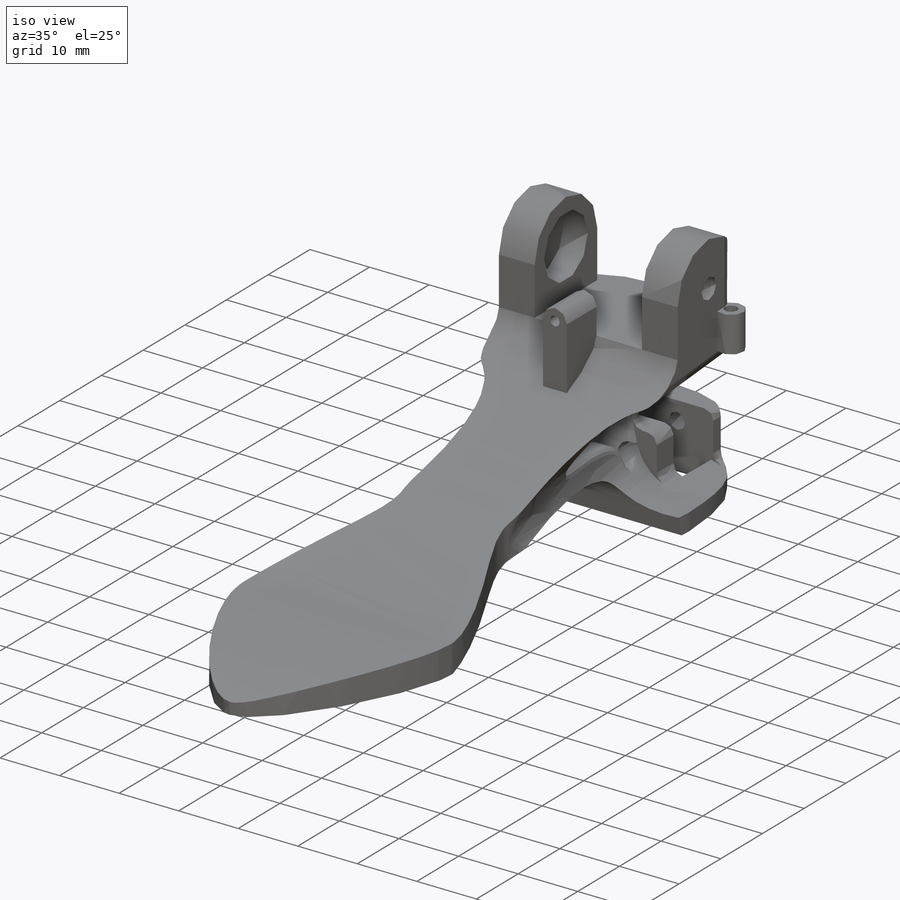
[diagram: iso view]
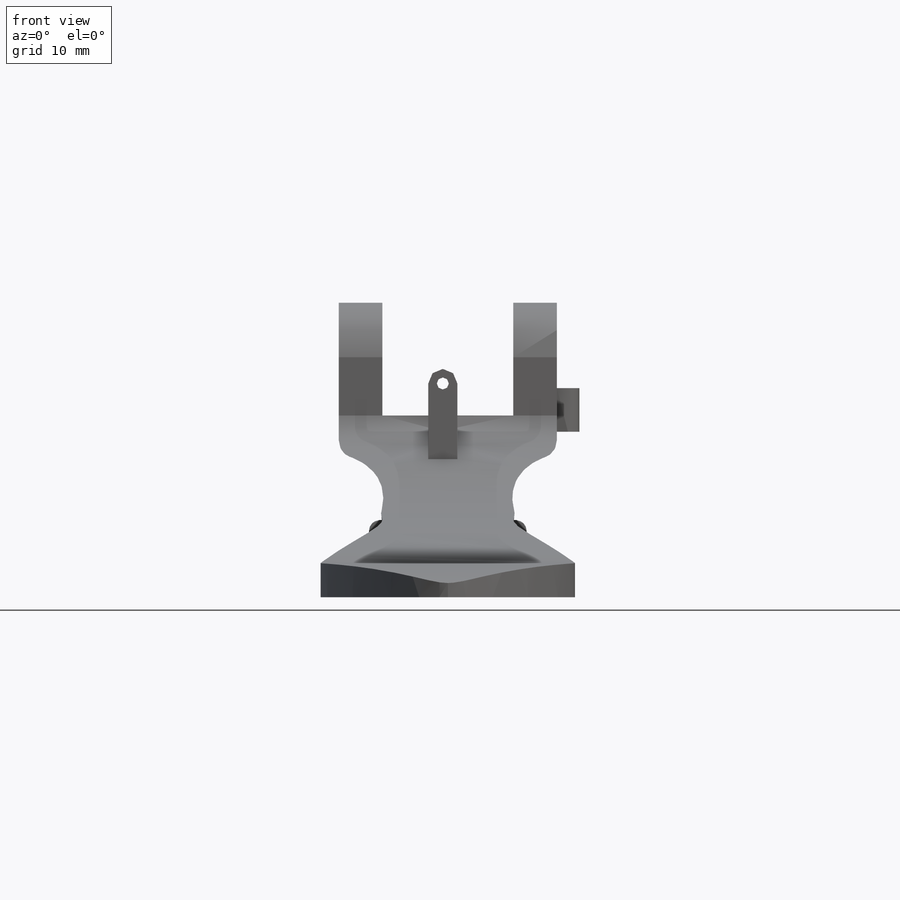
[diagram: front view]
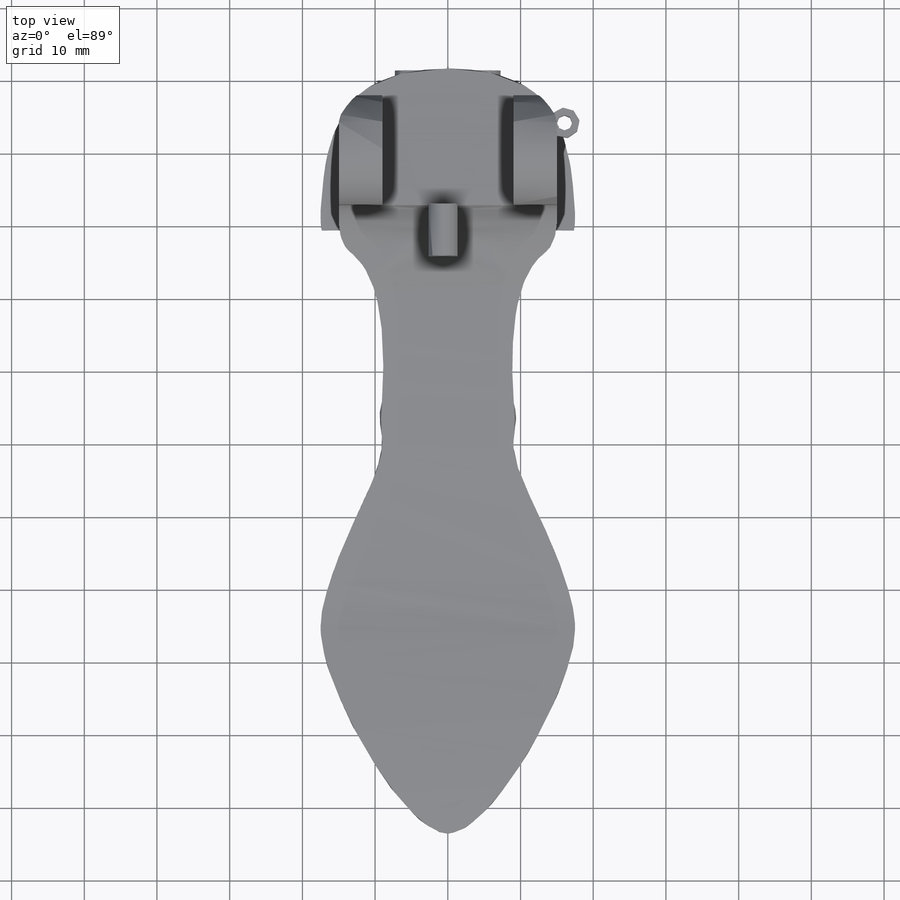
[diagram: top view]
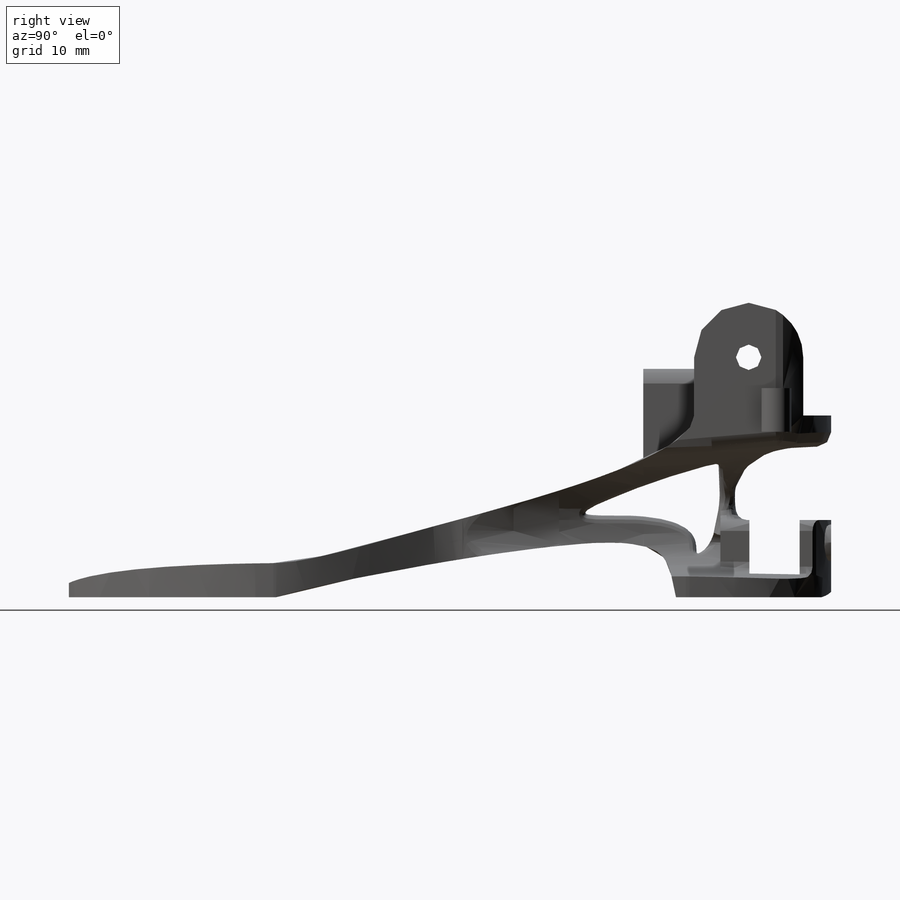
[diagram: right view]
SOLIDWORKS PART (.sldprt)
format: sldprt  version: not decoded by parser v0  size: 990,208 bytes
history: native  units: mm
features: sketch x18, extrude x8, plane x5, cut_extrude x5, fillet x4, mirror x2, material x1, hole x1 (+13 scaffold rows collapsed)
feature tree (57):
  scaffold x13  (default folders/planes/origin — collapsed)
  material  "PLA Black"
  plane  "Plane3"  Offset=40mm
  sketch  "Sketch6"  dims[c1.D1=5.0mm c1.D2=20.0mm c1.D3=30.0mm c1.D4=100.0mm c1.D5=3.0mm c1.D6=25.0mm c2.D4=95.0mm c2.D5=7.5mm]
  extrude  "Boss-Extrude4"  Depth=35mm
  sketch  "Sketch7"  dims[c1.D2=~12.509581mm c1.D1=1.5mm c2.D2=~30.861871mm c2.D1=1.5mm c3.D2=9.0mm c3.D3=1.0mm c3.D4=20.0mm c3.D5=40.0mm c4.D3=3.0mm]
  cut_extrude  "Cut-Extrude2"  [1 undecoded]
  plane  "Plane1"
  plane  "Plane2"
  sketch  "Sketch9"  dims[c1.D3=~9.019682mm c1.D1=3.0mm c1.D2=3.0mm c2.D1=3.0mm]
  sketch  "Sketch13"  dims[D1=0.0mm]
  sketch  "Sketch10"
  mirror  "Mirror2"
  fillet  "Fillet3"  Radius=2mm
  fillet  "Fillet4"  Radius=1mm
  sketch  "Sketch15"  dims[c1.D1=15.0mm c1.D2=18.0mm c1.D3=6.0mm c2.D1=6.0mm c2.D3=15.0mm]
  extrude  "Boss-Extrude5"  Depth=15.5mm
  sketch  "Sketch20"  dims[c1.D1=7.5mm c1.D2=3.5mm c2.D1=10.0mm]
  cut_extrude  "Cut-Extrude7"  Depth=1mm
  sketch  "Sketch17"
  cut_extrude  "Cut-Extrude3"  [1 undecoded]
  sketch  "Sketch18"  dims[D1=10.5mm]
  cut_extrude  "Cut-Extrude4"  Depth=4.1mm
  mirror  "Mirror3"
  fillet  "Fillet6"  Radius=2mm
  plane  "Plane4"
  sketch  "Sketch23"  dims[D1=1.65mm D2=2.0mm D3=3.6mm]
  extrude  "Boss-Extrude7"  Depth=7mm
  sketch  "Sketch24"  dims[D1=2.101mm D2=1.0505mm D3=3.805mm]
  extrude  "Boss-Extrude8"  Depth=6mm
  sketch  "Sketch25"  dims[D1=0.0mm]
  extrude  "Boss-Extrude9"  [1 undecoded]
  sketch  "Sketch26"  dims[D1=6.9mm D2=21.0mm D3=3.0mm]
  cut_extrude  "Cut-Extrude8"  [1 undecoded]
  sketch  "Sketch27"  dims[c1.D2=2.5mm c1.D1=9.55mm c2.D2=5.0mm c2.D3=9.0mm c2.D4=6.625mm c2.D5=4.0mm]
  extrude  "Boss-Extrude10"  Depth=4mm
  sketch  "Sketch33"
  extrude  "Boss-Extrude11"  [1 undecoded]
  plane  "Plane5"
  hole  "M2.5 Clearance Hole1"  Diameter=2.7mm Depth=17.5mm
  sketch  "Sketch29"  dims[D1=9.55mm D2=7.525mm]
  sketch  "Sketch31"  dims[hole-wizard template sketch: 47 standard entries collapsed; hole parameters kept: c15.Hole Depth=17.5mm c15.D3=~14.816244mm c15.Drill Angle=118.0deg]
  fillet  "Fillet7"  Radius=1.5mm
  sketch  "Sketch34"  dims[D1=5.0mm]
  extrude  "Boss-Extrude12"  [1 undecoded]
decode coverage: 27 of 38 modeling features carry decoded parameters
note: ~ marks probable driven/reference dimensions
note: 6 parameter values undecoded
summary: no parameter record found for 6 features
note: suppression state not decoded; provenance and decode notes live in map.json
